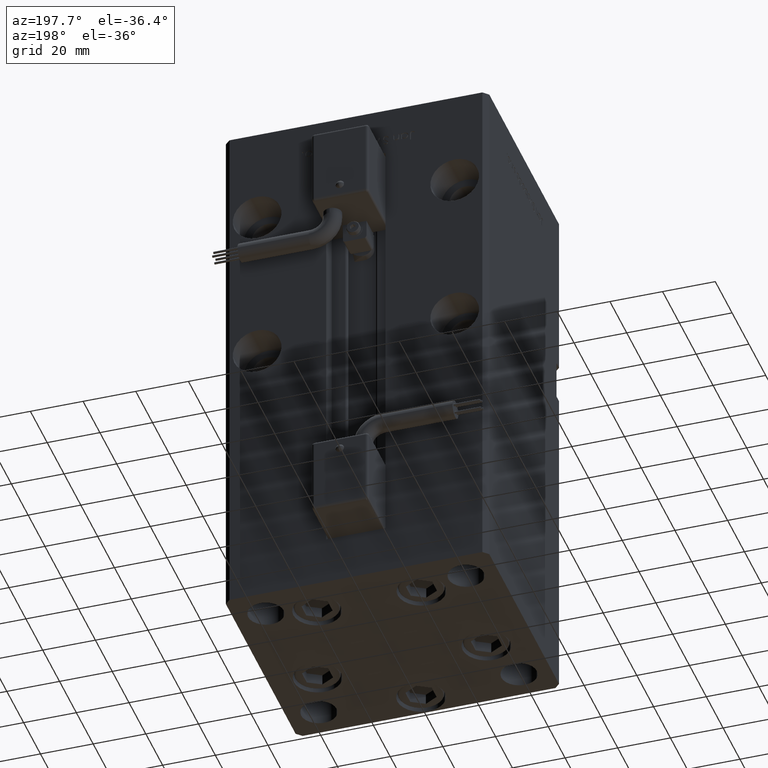
[diagram: clean part render]
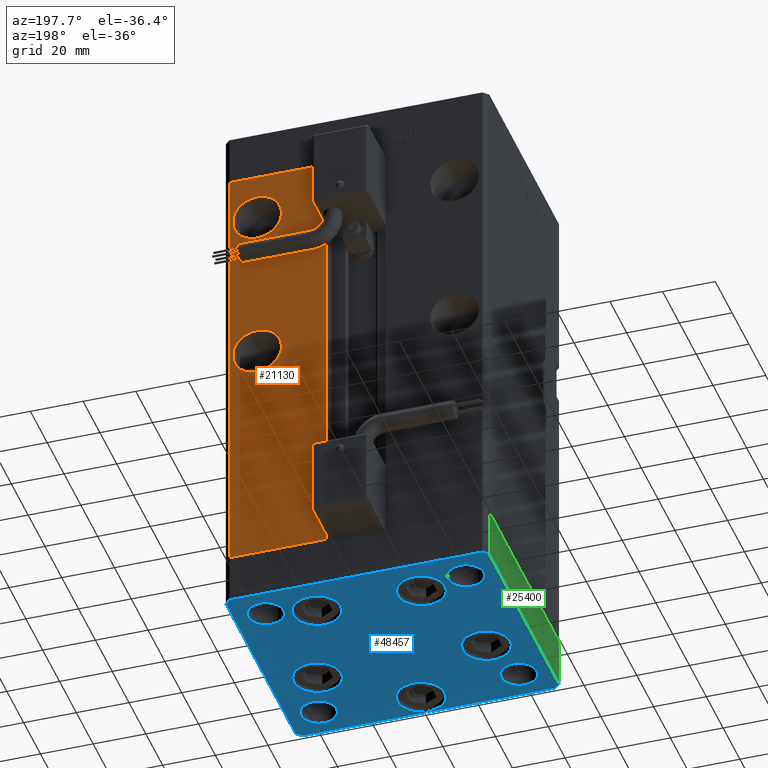
[diagram: same view with three faces highlighted in distinct colors, each labeled with its STEP entity id]
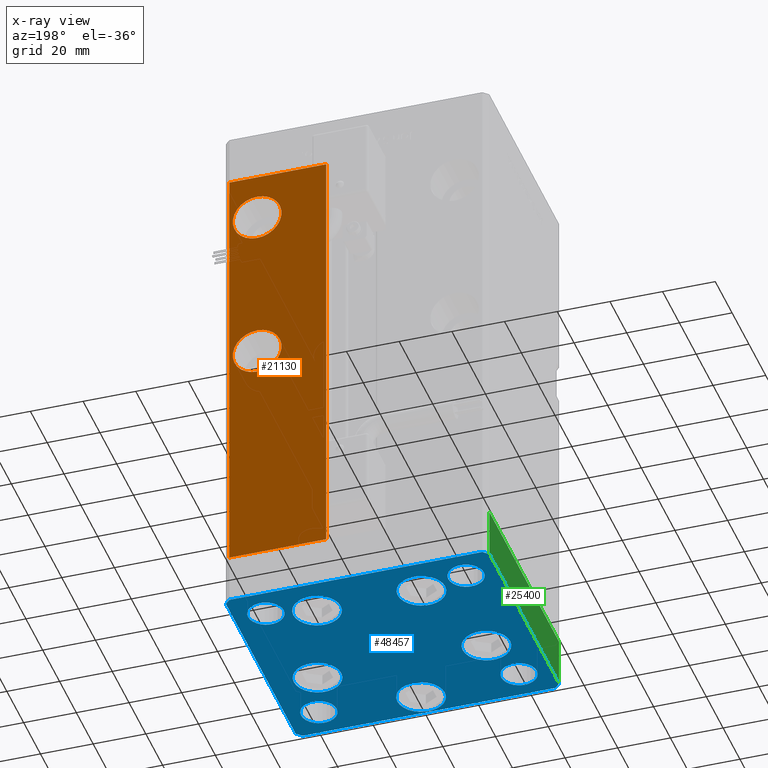
[diagram: x-ray of the same camera — body ghosted, the three highlighted faces saturated]
A machine part, auxiliary view with three faces highlighted in distinct colors.
The next image is the same camera in x-ray (body ghosted, the three faces saturated) — at least one of them is partly hidden behind the body in this view.
Their STEP definitions:

[orange] entity #21130 — the highlighted planar face has unit normal (0, -1, 0).
#147 = DIRECTION ( 'NONE',  ( 0.000000000000000000, 1.000000000000000000, 0.000000000000000000 ) ) ;
#302 = EDGE_CURVE ( 'NONE', #54902, #22147, #46914, .T. ) ;
#571 = AXIS2_PLACEMENT_3D ( 'NONE', #39480, #147, #16405 ) ;
#1321 = VERTEX_POINT ( 'NONE', #52003 ) ;
#1702 = AXIS2_PLACEMENT_3D ( 'NONE', #29967, #43376, #21145 ) ;
#3647 = VECTOR ( 'NONE', #29549, 1000.000000000000000 ) ;
#4143 = PLANE ( 'NONE',  #18569 ) ;
#6814 = LINE ( 'NONE', #15637, #19199 ) ;
#7726 = ORIENTED_EDGE ( 'NONE', *, *, #36786, .F. ) ;
#8147 = CARTESIAN_POINT ( 'NONE',  ( -11.24999999999999645, 43.50000000000000000, 168.5000000000000000 ) ) ;
#8708 = FACE_BOUND ( 'NONE', #22115, .T. ) ;
#9170 = VECTOR ( 'NONE', #17349, 1000.000000000000000 ) ;
#11019 = CARTESIAN_POINT ( 'NONE',  ( 48.00000000000000711, 43.50000000000000000, 168.5000000000000000 ) ) ;
#11691 = LINE ( 'NONE', #54182, #25466 ) ;
#11743 = DIRECTION ( 'NONE',  ( 0.000000000000000000, 1.000000000000000000, -0.000000000000000000 ) ) ;
#12045 = DIRECTION ( 'NONE',  ( 0.000000000000000000, 1.000000000000000000, 0.000000000000000000 ) ) ;
#12736 = CARTESIAN_POINT ( 'NONE',  ( -11.24999999999999645, 43.50000000000000000, 168.5000000000000000 ) ) ;
#15637 = CARTESIAN_POINT ( 'NONE',  ( 11.24999999999999645, 43.50000000000000000, 0.000000000000000000 ) ) ;
#15957 = DIRECTION ( 'NONE',  ( -1.000000000000000000, 0.000000000000000000, 0.000000000000000000 ) ) ;
#16092 = CARTESIAN_POINT ( 'NONE',  ( 37.50000000000000000, 43.50000000000000000, 141.2500000000000284 ) ) ;
#16405 = DIRECTION ( 'NONE',  ( 0.000000000000000000, 0.000000000000000000, 1.000000000000000000 ) ) ;
#16741 = VERTEX_POINT ( 'NONE', #18963 ) ;
#17349 = DIRECTION ( 'NONE',  ( -0.000000000000000000, -0.000000000000000000, -1.000000000000000000 ) ) ;
#18321 = AXIS2_PLACEMENT_3D ( 'NONE', #55665, #12045, #37973 ) ;
#18569 = AXIS2_PLACEMENT_3D ( 'NONE', #8147, #51460, #38058 ) ;
#18963 = CARTESIAN_POINT ( 'NONE',  ( 37.50000000000000000, 43.50000000000000000, 159.7500000000000284 ) ) ;
#19199 = VECTOR ( 'NONE', #37562, 1000.000000000000000 ) ;
#19320 = ORIENTED_EDGE ( 'NONE', *, *, #45882, .T. ) ;
#19910 = ORIENTED_EDGE ( 'NONE', *, *, #26909, .F. ) ;
#21130 = ADVANCED_FACE ( 'NONE', ( #47185, #8708, #55459 ), #4143, .F. ) ;
#21145 = DIRECTION ( 'NONE',  ( 0.000000000000000000, 0.000000000000000000, -1.000000000000000000 ) ) ;
#21854 = LINE ( 'NONE', #12736, #3647 ) ;
#22115 = EDGE_LOOP ( 'NONE', ( #46879, #19910 ) ) ;
#22147 = VERTEX_POINT ( 'NONE', #40671 ) ;
#25466 = VECTOR ( 'NONE', #15957, 1000.000000000000000 ) ;
#26909 = EDGE_CURVE ( 'NONE', #54933, #16741, #54295, .T. ) ;
#27021 = CARTESIAN_POINT ( 'NONE',  ( 48.00000000000000711, 43.50000000000000000, 168.5000000000000000 ) ) ;
#29549 = DIRECTION ( 'NONE',  ( 1.000000000000000000, 0.000000000000000000, 0.000000000000000000 ) ) ;
#29967 = CARTESIAN_POINT ( 'NONE',  ( 37.50000000000000000, 43.50000000000000000, 90.50000000000002842 ) ) ;
#30092 = VERTEX_POINT ( 'NONE', #49478 ) ;
#30135 = CIRCLE ( 'NONE', #18321, 9.250000000000008882 ) ;
#31537 = EDGE_LOOP ( 'NONE', ( #55021, #7726 ) ) ;
#31547 = VERTEX_POINT ( 'NONE', #11019 ) ;
#33492 = EDGE_LOOP ( 'NONE', ( #39980, #19320, #50129, #51814 ) ) ;
#35102 = CARTESIAN_POINT ( 'NONE',  ( 37.50000000000000000, 43.50000000000000000, 99.75000000000002842 ) ) ;
#36786 = EDGE_CURVE ( 'NONE', #22147, #54902, #51800, .T. ) ;
#37562 = DIRECTION ( 'NONE',  ( -0.000000000000000000, -0.000000000000000000, 1.000000000000000000 ) ) ;
#37973 = DIRECTION ( 'NONE',  ( 0.000000000000000000, 0.000000000000000000, 1.000000000000000000 ) ) ;
#38058 = DIRECTION ( 'NONE',  ( 0.000000000000000000, -0.000000000000000000, -1.000000000000000000 ) ) ;
#39382 = EDGE_CURVE ( 'NONE', #1321, #54720, #11691, .T. ) ;
#39480 = CARTESIAN_POINT ( 'NONE',  ( 37.50000000000000000, 43.50000000000000000, 150.5000000000000284 ) ) ;
#39980 = ORIENTED_EDGE ( 'NONE', *, *, #39382, .T. ) ;
#40671 = CARTESIAN_POINT ( 'NONE',  ( 37.50000000000000000, 43.50000000000000000, 81.25000000000001421 ) ) ;
#41500 = EDGE_CURVE ( 'NONE', #31547, #1321, #52984, .T. ) ;
#42465 = EDGE_CURVE ( 'NONE', #16741, #54933, #30135, .T. ) ;
#43376 = DIRECTION ( 'NONE',  ( 0.000000000000000000, 1.000000000000000000, -0.000000000000000000 ) ) ;
#45882 = EDGE_CURVE ( 'NONE', #54720, #30092, #6814, .T. ) ;
#46511 = DIRECTION ( 'NONE',  ( 0.000000000000000000, 0.000000000000000000, -1.000000000000000000 ) ) ;
#46879 = ORIENTED_EDGE ( 'NONE', *, *, #42465, .F. ) ;
#46914 = CIRCLE ( 'NONE', #52372, 9.250000000000008882 ) ;
#47185 = FACE_BOUND ( 'NONE', #31537, .T. ) ;
#48376 = CARTESIAN_POINT ( 'NONE',  ( 11.24999999999999645, 43.50000000000000000, 0.000000000000000000 ) ) ;
#49478 = CARTESIAN_POINT ( 'NONE',  ( 11.24999999999998934, 43.50000000000000000, 168.5000000000000000 ) ) ;
#50129 = ORIENTED_EDGE ( 'NONE', *, *, #54557, .T. ) ;
#50237 = CARTESIAN_POINT ( 'NONE',  ( 37.50000000000000000, 43.50000000000000000, 90.50000000000002842 ) ) ;
#51460 = DIRECTION ( 'NONE',  ( 0.000000000000000000, -1.000000000000000000, 0.000000000000000000 ) ) ;
#51800 = CIRCLE ( 'NONE', #1702, 9.250000000000008882 ) ;
#51814 = ORIENTED_EDGE ( 'NONE', *, *, #41500, .T. ) ;
#52003 = CARTESIAN_POINT ( 'NONE',  ( 48.00000000000000711, 43.50000000000000000, 0.000000000000000000 ) ) ;
#52372 = AXIS2_PLACEMENT_3D ( 'NONE', #50237, #11743, #46511 ) ;
#52984 = LINE ( 'NONE', #27021, #9170 ) ;
#54182 = CARTESIAN_POINT ( 'NONE',  ( -11.24999999999999645, 43.50000000000000000, 0.000000000000000000 ) ) ;
#54295 = CIRCLE ( 'NONE', #571, 9.250000000000008882 ) ;
#54557 = EDGE_CURVE ( 'NONE', #30092, #31547, #21854, .T. ) ;
#54720 = VERTEX_POINT ( 'NONE', #48376 ) ;
#54902 = VERTEX_POINT ( 'NONE', #35102 ) ;
#54933 = VERTEX_POINT ( 'NONE', #16092 ) ;
#55021 = ORIENTED_EDGE ( 'NONE', *, *, #302, .F. ) ;
#55459 = FACE_OUTER_BOUND ( 'NONE', #33492, .T. ) ;
#55665 = CARTESIAN_POINT ( 'NONE',  ( 37.50000000000000000, 43.50000000000000000, 150.5000000000000284 ) ) ;

[blue] entity #48457 — the highlighted planar face has unit normal (0, 0, -1).
#275 = DIRECTION ( 'NONE',  ( 0.000000000000000000, -0.000000000000000000, -1.000000000000000000 ) ) ;
#468 = VERTEX_POINT ( 'NONE', #31921 ) ;
#686 = AXIS2_PLACEMENT_3D ( 'NONE', #45525, #54642, #33227 ) ;
#1266 = EDGE_CURVE ( 'NONE', #28859, #34929, #19650, .T. ) ;
#1428 = VECTOR ( 'NONE', #4638, 1000.000000000000000 ) ;
#1566 = CIRCLE ( 'NONE', #686, 6.749999999999999112 ) ;
#1615 = CIRCLE ( 'NONE', #8921, 9.000000000000001776 ) ;
#1670 = EDGE_CURVE ( 'NONE', #55428, #19113, #56030, .T. ) ;
#1683 = CIRCLE ( 'NONE', #8995, 8.999999999999998224 ) ;
#2089 = CARTESIAN_POINT ( 'NONE',  ( -32.05550741379015278, -11.33333333333333925, 0.000000000000000000 ) ) ;
#2255 = CARTESIAN_POINT ( 'NONE',  ( -47.99999999999999289, -43.50000000000001421, 0.000000000000000000 ) ) ;
#2780 = EDGE_CURVE ( 'NONE', #55159, #38028, #28755, .T. ) ;
#2881 = DIRECTION ( 'NONE',  ( 0.000000000000000000, -0.000000000000000000, -1.000000000000000000 ) ) ;
#3442 = DIRECTION ( 'NONE',  ( 1.000000000000000000, 0.000000000000000000, 0.000000000000000000 ) ) ;
#3708 = CARTESIAN_POINT ( 'NONE',  ( -44.75000000000000000, 31.50000000000000000, 0.000000000000000000 ) ) ;
#4638 = DIRECTION ( 'NONE',  ( -0.7071067811865463515, -0.7071067811865487940, 0.000000000000000000 ) ) ;
#4688 = VERTEX_POINT ( 'NONE', #41673 ) ;
#4700 = ORIENTED_EDGE ( 'NONE', *, *, #5873, .T. ) ;
#4755 = DIRECTION ( 'NONE',  ( 1.000000000000000000, 0.000000000000000000, 0.000000000000000000 ) ) ;
#5413 = AXIS2_PLACEMENT_3D ( 'NONE', #15676, #19111, #10563 ) ;
#5479 = EDGE_CURVE ( 'NONE', #53627, #40820, #15726, .T. ) ;
#5595 = EDGE_CURVE ( 'NONE', #51039, #21191, #20709, .T. ) ;
#5868 = AXIS2_PLACEMENT_3D ( 'NONE', #35334, #275, #47613 ) ;
#5873 = EDGE_CURVE ( 'NONE', #54904, #9324, #11117, .T. ) ;
#5975 = DIRECTION ( 'NONE',  ( 0.7071067811865463515, 0.7071067811865487940, 0.000000000000000000 ) ) ;
#6323 = CARTESIAN_POINT ( 'NONE',  ( 38.00000000000000000, 31.49999999999999289, 0.000000000000000000 ) ) ;
#6466 = DIRECTION ( 'NONE',  ( 1.000000000000000000, 0.000000000000000000, 0.000000000000000000 ) ) ;
#6601 = CARTESIAN_POINT ( 'NONE',  ( 41.05550741379015278, -11.33333333333332860, 0.000000000000000000 ) ) ;
#6743 = CARTESIAN_POINT ( 'NONE',  ( 0.000000000000000000, 0.000000000000000000, 0.000000000000000000 ) ) ;
#6836 = EDGE_LOOP ( 'NONE', ( #4700, #17409, #23023, #12724, #27180, #40914, #21263, #14228 ) ) ;
#6856 = CARTESIAN_POINT ( 'NONE',  ( -47.99999999999999289, -43.50000000000001421, 0.000000000000000000 ) ) ;
#6906 = DIRECTION ( 'NONE',  ( 1.000000000000000000, 0.000000000000000000, 0.000000000000000000 ) ) ;
#6921 = EDGE_CURVE ( 'NONE', #468, #23535, #10741, .T. ) ;
#7135 = DIRECTION ( 'NONE',  ( 1.000000000000000000, 0.000000000000000000, 0.000000000000000000 ) ) ;
#7156 = EDGE_CURVE ( 'NONE', #38028, #53627, #26639, .T. ) ;
#7220 = EDGE_CURVE ( 'NONE', #4688, #17467, #1615, .T. ) ;
#7403 = CARTESIAN_POINT ( 'NONE',  ( -50.00000000000000000, -41.50000000000000000, 0.000000000000000000 ) ) ;
#7469 = CARTESIAN_POINT ( 'NONE',  ( 49.99999999999992184, 41.49999999999998579, 0.000000000000000000 ) ) ;
#7832 = ORIENTED_EDGE ( 'NONE', *, *, #51271, .T. ) ;
#8137 = AXIS2_PLACEMENT_3D ( 'NONE', #6323, #36237, #32811 ) ;
#8581 = ORIENTED_EDGE ( 'NONE', *, *, #22629, .T. ) ;
#8755 = VECTOR ( 'NONE', #5975, 1000.000000000000000 ) ;
#8772 = CARTESIAN_POINT ( 'NONE',  ( 32.05550741379015278, -11.33333333333333037, 0.000000000000000000 ) ) ;
#8921 = AXIS2_PLACEMENT_3D ( 'NONE', #2089, #10101, #36288 ) ;
#8995 = AXIS2_PLACEMENT_3D ( 'NONE', #16820, #2881, #3442 ) ;
#9324 = VERTEX_POINT ( 'NONE', #2255 ) ;
#9575 = EDGE_CURVE ( 'NONE', #10068, #16665, #17620, .T. ) ;
#10068 = VERTEX_POINT ( 'NONE', #3708 ) ;
#10083 = CARTESIAN_POINT ( 'NONE',  ( -28.82068048781373548, 27.62499999999999645, 0.000000000000000000 ) ) ;
#10101 = DIRECTION ( 'NONE',  ( 0.000000000000000000, -0.000000000000000000, -1.000000000000000000 ) ) ;
#10563 = DIRECTION ( 'NONE',  ( 1.000000000000000000, 0.000000000000000000, 0.000000000000000000 ) ) ;
#10741 = CIRCLE ( 'NONE', #35316, 6.749999999999999112 ) ;
#10991 = AXIS2_PLACEMENT_3D ( 'NONE', #37807, #28977, #12439 ) ;
#11117 = LINE ( 'NONE', #7403, #47117 ) ;
#11386 = CARTESIAN_POINT ( 'NONE',  ( 47.99999999999999289, -43.50000000000001421, 0.000000000000000000 ) ) ;
#11523 = AXIS2_PLACEMENT_3D ( 'NONE', #8772, #26149, #43549 ) ;
#11576 = DIRECTION ( 'NONE',  ( -0.000000000000000000, 0.000000000000000000, 1.000000000000000000 ) ) ;
#11784 = EDGE_LOOP ( 'NONE', ( #37241, #52752 ) ) ;
#11856 = FACE_OUTER_BOUND ( 'NONE', #6836, .T. ) ;
#12004 = EDGE_LOOP ( 'NONE', ( #12497, #55186 ) ) ;
#12439 = DIRECTION ( 'NONE',  ( 1.000000000000000000, 0.000000000000000000, 0.000000000000000000 ) ) ;
#12497 = ORIENTED_EDGE ( 'NONE', *, *, #1670, .T. ) ;
#12665 = VERTEX_POINT ( 'NONE', #20921 ) ;
#12724 = ORIENTED_EDGE ( 'NONE', *, *, #7156, .T. ) ;
#13187 = CARTESIAN_POINT ( 'NONE',  ( 10.82068048781373193, 27.62500000000000000, 0.000000000000000000 ) ) ;
#13477 = AXIS2_PLACEMENT_3D ( 'NONE', #32200, #27935, #45627 ) ;
#13578 = ORIENTED_EDGE ( 'NONE', *, *, #5595, .T. ) ;
#14191 = DIRECTION ( 'NONE',  ( 1.000000000000000000, 0.000000000000000000, 0.000000000000000000 ) ) ;
#14211 = CARTESIAN_POINT ( 'NONE',  ( 47.99999999999999289, -43.50000000000001421, 0.000000000000000000 ) ) ;
#14228 = ORIENTED_EDGE ( 'NONE', *, *, #39533, .T. ) ;
#14339 = EDGE_CURVE ( 'NONE', #19113, #55428, #34945, .T. ) ;
#14842 = EDGE_LOOP ( 'NONE', ( #22980, #54593 ) ) ;
#15232 = CARTESIAN_POINT ( 'NONE',  ( 47.99999999999990763, 43.50000000000000000, 0.000000000000000000 ) ) ;
#15316 = CARTESIAN_POINT ( 'NONE',  ( -10.82068048781373903, 27.62499999999999645, 0.000000000000000000 ) ) ;
#15385 = CARTESIAN_POINT ( 'NONE',  ( -23.05550741379014923, -11.33333333333333748, 0.000000000000000000 ) ) ;
#15676 = CARTESIAN_POINT ( 'NONE',  ( 38.00000000000000000, -31.49999999999999289, 0.000000000000000000 ) ) ;
#15726 = LINE ( 'NONE', #7469, #38899 ) ;
#15869 = AXIS2_PLACEMENT_3D ( 'NONE', #44194, #35056, #22807 ) ;
#16240 = DIRECTION ( 'NONE',  ( 8.360113137237628665E-17, -1.000000000000000000, 0.000000000000000000 ) ) ;
#16274 = EDGE_CURVE ( 'NONE', #40820, #46988, #22053, .T. ) ;
#16297 = CIRCLE ( 'NONE', #8137, 6.749999999999999112 ) ;
#16665 = VERTEX_POINT ( 'NONE', #37320 ) ;
#16820 = CARTESIAN_POINT ( 'NONE',  ( 19.82068048781373193, 27.62500000000000000, 0.000000000000000000 ) ) ;
#17409 = ORIENTED_EDGE ( 'NONE', *, *, #38389, .T. ) ;
#17467 = VERTEX_POINT ( 'NONE', #15385 ) ;
#17573 = CARTESIAN_POINT ( 'NONE',  ( -38.00000000000000000, 31.50000000000000000, 0.000000000000000000 ) ) ;
#17620 = CIRCLE ( 'NONE', #47671, 6.749999999999999112 ) ;
#17822 = ORIENTED_EDGE ( 'NONE', *, *, #46927, .F. ) ;
#18502 = VERTEX_POINT ( 'NONE', #20234 ) ;
#18898 = DIRECTION ( 'NONE',  ( 1.000000000000000000, 0.000000000000000000, 0.000000000000000000 ) ) ;
#18964 = DIRECTION ( 'NONE',  ( 0.000000000000000000, -0.000000000000000000, -1.000000000000000000 ) ) ;
#19111 = DIRECTION ( 'NONE',  ( 0.000000000000000000, -0.000000000000000000, -1.000000000000000000 ) ) ;
#19113 = VERTEX_POINT ( 'NONE', #22075 ) ;
#19249 = CARTESIAN_POINT ( 'NONE',  ( -19.82068048781373903, 27.62499999999999645, 0.000000000000000000 ) ) ;
#19650 = CIRCLE ( 'NONE', #32367, 9.000000000000000000 ) ;
#19808 = DIRECTION ( 'NONE',  ( 1.000000000000000000, 0.000000000000000000, 0.000000000000000000 ) ) ;
#19848 = FACE_BOUND ( 'NONE', #12004, .T. ) ;
#20234 = CARTESIAN_POINT ( 'NONE',  ( 28.82068048781372838, 27.62500000000000000, 0.000000000000000000 ) ) ;
#20709 = CIRCLE ( 'NONE', #54407, 9.000000000000000000 ) ;
#20921 = CARTESIAN_POINT ( 'NONE',  ( 23.05550741379014923, -11.33333333333333037, 0.000000000000000000 ) ) ;
#21039 = ORIENTED_EDGE ( 'NONE', *, *, #21808, .T. ) ;
#21191 = VERTEX_POINT ( 'NONE', #52888 ) ;
#21263 = ORIENTED_EDGE ( 'NONE', *, *, #26013, .T. ) ;
#21531 = CIRCLE ( 'NONE', #52504, 9.000000000000000000 ) ;
#21808 = EDGE_CURVE ( 'NONE', #17467, #4688, #44128, .T. ) ;
#21815 = ORIENTED_EDGE ( 'NONE', *, *, #38411, .T. ) ;
#22053 = LINE ( 'NONE', #22905, #44168 ) ;
#22059 = EDGE_LOOP ( 'NONE', ( #8581, #7832 ) ) ;
#22075 = CARTESIAN_POINT ( 'NONE',  ( -44.74999999999999289, -31.50000000000000000, 0.000000000000000000 ) ) ;
#22481 = CARTESIAN_POINT ( 'NONE',  ( 38.00000000000000000, 31.49999999999999289, 0.000000000000000000 ) ) ;
#22629 = EDGE_CURVE ( 'NONE', #45257, #18502, #45011, .T. ) ;
#22807 = DIRECTION ( 'NONE',  ( 1.000000000000000000, 0.000000000000000000, 0.000000000000000000 ) ) ;
#22905 = CARTESIAN_POINT ( 'NONE',  ( 47.99999999999990763, 43.50000000000000000, 0.000000000000000000 ) ) ;
#22980 = ORIENTED_EDGE ( 'NONE', *, *, #34322, .T. ) ;
#23023 = ORIENTED_EDGE ( 'NONE', *, *, #2780, .T. ) ;
#23392 = LINE ( 'NONE', #6856, #33589 ) ;
#23535 = VERTEX_POINT ( 'NONE', #31432 ) ;
#23949 = CARTESIAN_POINT ( 'NONE',  ( 38.00000000000000000, -31.49999999999999289, 0.000000000000000000 ) ) ;
#24124 = FACE_BOUND ( 'NONE', #34552, .T. ) ;
#26013 = EDGE_CURVE ( 'NONE', #46988, #28691, #35114, .T. ) ;
#26149 = DIRECTION ( 'NONE',  ( 0.000000000000000000, -0.000000000000000000, -1.000000000000000000 ) ) ;
#26209 = CIRCLE ( 'NONE', #13477, 9.000000000000000000 ) ;
#26408 = CARTESIAN_POINT ( 'NONE',  ( -37.99999999999999289, -31.50000000000000000, 0.000000000000000000 ) ) ;
#26639 = LINE ( 'NONE', #31193, #55348 ) ;
#27180 = ORIENTED_EDGE ( 'NONE', *, *, #5479, .T. ) ;
#27473 = CARTESIAN_POINT ( 'NONE',  ( 4.163799117101000559E-15, -34.00000000000000000, 0.000000000000000000 ) ) ;
#27935 = DIRECTION ( 'NONE',  ( 0.000000000000000000, -0.000000000000000000, -1.000000000000000000 ) ) ;
#28556 = CARTESIAN_POINT ( 'NONE',  ( 4.163799117101000559E-15, -34.00000000000000000, 0.000000000000000000 ) ) ;
#28612 = VERTEX_POINT ( 'NONE', #54719 ) ;
#28691 = VERTEX_POINT ( 'NONE', #32086 ) ;
#28755 = LINE ( 'NONE', #11386, #8755 ) ;
#28859 = VERTEX_POINT ( 'NONE', #15316 ) ;
#28977 = DIRECTION ( 'NONE',  ( 0.000000000000000000, -0.000000000000000000, -1.000000000000000000 ) ) ;
#31000 = EDGE_CURVE ( 'NONE', #21191, #51039, #21531, .T. ) ;
#31193 = CARTESIAN_POINT ( 'NONE',  ( 50.00000000000000000, -41.49999999999999289, 0.000000000000000000 ) ) ;
#31432 = CARTESIAN_POINT ( 'NONE',  ( 44.75000000000000000, 31.49999999999999289, 0.000000000000000000 ) ) ;
#31505 = EDGE_CURVE ( 'NONE', #12665, #45418, #54332, .T. ) ;
#31921 = CARTESIAN_POINT ( 'NONE',  ( 31.25000000000000000, 31.49999999999999289, 0.000000000000000000 ) ) ;
#32086 = CARTESIAN_POINT ( 'NONE',  ( -50.00000000000000711, 41.49999999999995026, 0.000000000000000000 ) ) ;
#32183 = EDGE_LOOP ( 'NONE', ( #37530, #21039 ) ) ;
#32200 = CARTESIAN_POINT ( 'NONE',  ( -19.82068048781373903, 27.62499999999999645, 0.000000000000000000 ) ) ;
#32367 = AXIS2_PLACEMENT_3D ( 'NONE', #19249, #18964, #19808 ) ;
#32811 = DIRECTION ( 'NONE',  ( 1.000000000000000000, 0.000000000000000000, 0.000000000000000000 ) ) ;
#33216 = FACE_BOUND ( 'NONE', #32183, .T. ) ;
#33227 = DIRECTION ( 'NONE',  ( 1.000000000000000000, 0.000000000000000000, 0.000000000000000000 ) ) ;
#33471 = AXIS2_PLACEMENT_3D ( 'NONE', #23949, #45901, #54455 ) ;
#33589 = VECTOR ( 'NONE', #7135, 1000.000000000000000 ) ;
#34314 = ORIENTED_EDGE ( 'NONE', *, *, #31000, .T. ) ;
#34322 = EDGE_CURVE ( 'NONE', #34929, #28859, #26209, .T. ) ;
#34340 = EDGE_CURVE ( 'NONE', #44339, #28612, #44454, .T. ) ;
#34552 = EDGE_LOOP ( 'NONE', ( #17822, #35258 ) ) ;
#34929 = VERTEX_POINT ( 'NONE', #10083 ) ;
#34945 = CIRCLE ( 'NONE', #49521, 6.749999999999999112 ) ;
#35056 = DIRECTION ( 'NONE',  ( 0.000000000000000000, -0.000000000000000000, -1.000000000000000000 ) ) ;
#35114 = LINE ( 'NONE', #52516, #1428 ) ;
#35258 = ORIENTED_EDGE ( 'NONE', *, *, #9575, .F. ) ;
#35316 = AXIS2_PLACEMENT_3D ( 'NONE', #22481, #44711, #14191 ) ;
#35334 = CARTESIAN_POINT ( 'NONE',  ( -32.05550741379015278, -11.33333333333333925, 0.000000000000000000 ) ) ;
#35534 = CARTESIAN_POINT ( 'NONE',  ( -31.24999999999999289, -31.50000000000000000, 0.000000000000000000 ) ) ;
#36237 = DIRECTION ( 'NONE',  ( -0.000000000000000000, 0.000000000000000000, 1.000000000000000000 ) ) ;
#36288 = DIRECTION ( 'NONE',  ( 1.000000000000000000, 0.000000000000000000, 0.000000000000000000 ) ) ;
#36352 = VECTOR ( 'NONE', #16240, 1000.000000000000000 ) ;
#37241 = ORIENTED_EDGE ( 'NONE', *, *, #31505, .T. ) ;
#37320 = CARTESIAN_POINT ( 'NONE',  ( -31.25000000000000000, 31.50000000000000000, 0.000000000000000000 ) ) ;
#37530 = ORIENTED_EDGE ( 'NONE', *, *, #7220, .T. ) ;
#37776 = FACE_BOUND ( 'NONE', #52416, .T. ) ;
#37807 = CARTESIAN_POINT ( 'NONE',  ( 32.05550741379015278, -11.33333333333333037, 0.000000000000000000 ) ) ;
#38028 = VERTEX_POINT ( 'NONE', #44294 ) ;
#38323 = ORIENTED_EDGE ( 'NONE', *, *, #6921, .F. ) ;
#38353 = ORIENTED_EDGE ( 'NONE', *, *, #34340, .T. ) ;
#38389 = EDGE_CURVE ( 'NONE', #9324, #55159, #23392, .T. ) ;
#38411 = EDGE_CURVE ( 'NONE', #28612, #44339, #54571, .T. ) ;
#38732 = AXIS2_PLACEMENT_3D ( 'NONE', #53684, #40845, #18898 ) ;
#38899 = VECTOR ( 'NONE', #45391, 1000.000000000000114 ) ;
#39533 = EDGE_CURVE ( 'NONE', #28691, #54904, #42753, .T. ) ;
#39728 = EDGE_LOOP ( 'NONE', ( #21815, #38353 ) ) ;
#40283 = DIRECTION ( 'NONE',  ( -1.000000000000000000, -3.614007241618350743E-16, 0.000000000000000000 ) ) ;
#40820 = VERTEX_POINT ( 'NONE', #15232 ) ;
#40845 = DIRECTION ( 'NONE',  ( 0.000000000000000000, -0.000000000000000000, -1.000000000000000000 ) ) ;
#40914 = ORIENTED_EDGE ( 'NONE', *, *, #16274, .T. ) ;
#41341 = EDGE_LOOP ( 'NONE', ( #48102, #38323 ) ) ;
#41673 = CARTESIAN_POINT ( 'NONE',  ( -41.05550741379015278, -11.33333333333333925, 0.000000000000000000 ) ) ;
#41705 = EDGE_CURVE ( 'NONE', #45418, #12665, #54697, .T. ) ;
#41891 = DIRECTION ( 'NONE',  ( 0.7071067811865474617, -0.7071067811865474617, 0.000000000000000000 ) ) ;
#42753 = LINE ( 'NONE', #56138, #36352 ) ;
#43549 = DIRECTION ( 'NONE',  ( 1.000000000000000000, 0.000000000000000000, 0.000000000000000000 ) ) ;
#43809 = DIRECTION ( 'NONE',  ( 0.000000000000000000, -0.000000000000000000, -1.000000000000000000 ) ) ;
#44128 = CIRCLE ( 'NONE', #5868, 9.000000000000001776 ) ;
#44168 = VECTOR ( 'NONE', #40283, 1000.000000000000000 ) ;
#44194 = CARTESIAN_POINT ( 'NONE',  ( 19.82068048781373193, 27.62500000000000000, 0.000000000000000000 ) ) ;
#44294 = CARTESIAN_POINT ( 'NONE',  ( 50.00000000000000000, -41.49999999999999289, 0.000000000000000000 ) ) ;
#44339 = VERTEX_POINT ( 'NONE', #51458 ) ;
#44454 = CIRCLE ( 'NONE', #33471, 6.749999999999999112 ) ;
#44711 = DIRECTION ( 'NONE',  ( -0.000000000000000000, 0.000000000000000000, 1.000000000000000000 ) ) ;
#45011 = CIRCLE ( 'NONE', #15869, 8.999999999999998224 ) ;
#45257 = VERTEX_POINT ( 'NONE', #13187 ) ;
#45391 = DIRECTION ( 'NONE',  ( -0.7071067811865474617, 0.7071067811865474617, 0.000000000000000000 ) ) ;
#45418 = VERTEX_POINT ( 'NONE', #6601 ) ;
#45514 = FACE_BOUND ( 'NONE', #22059, .T. ) ;
#45525 = CARTESIAN_POINT ( 'NONE',  ( -38.00000000000000000, 31.50000000000000000, 0.000000000000000000 ) ) ;
#45627 = DIRECTION ( 'NONE',  ( 1.000000000000000000, 0.000000000000000000, 0.000000000000000000 ) ) ;
#45794 = FACE_BOUND ( 'NONE', #14842, .T. ) ;
#45901 = DIRECTION ( 'NONE',  ( 0.000000000000000000, -0.000000000000000000, -1.000000000000000000 ) ) ;
#45954 = DIRECTION ( 'NONE',  ( 0.000000000000000000, -0.000000000000000000, -1.000000000000000000 ) ) ;
#46623 = PLANE ( 'NONE',  #53547 ) ;
#46927 = EDGE_CURVE ( 'NONE', #16665, #10068, #1566, .T. ) ;
#46988 = VERTEX_POINT ( 'NONE', #55197 ) ;
#47117 = VECTOR ( 'NONE', #41891, 1000.000000000000114 ) ;
#47613 = DIRECTION ( 'NONE',  ( 1.000000000000000000, 0.000000000000000000, 0.000000000000000000 ) ) ;
#47671 = AXIS2_PLACEMENT_3D ( 'NONE', #17573, #48090, #56350 ) ;
#48090 = DIRECTION ( 'NONE',  ( -0.000000000000000000, 0.000000000000000000, 1.000000000000000000 ) ) ;
#48102 = ORIENTED_EDGE ( 'NONE', *, *, #52008, .F. ) ;
#48457 = ADVANCED_FACE ( 'NONE', ( #45794, #45514, #54905, #37776, #33216, #50900, #50618, #24124, #11856, #19848 ), #46623, .T. ) ;
#48593 = DIRECTION ( 'NONE',  ( -1.003213576468515193E-15, 1.000000000000000000, 0.000000000000000000 ) ) ;
#49419 = DIRECTION ( 'NONE',  ( 0.000000000000000000, -0.000000000000000000, -1.000000000000000000 ) ) ;
#49521 = AXIS2_PLACEMENT_3D ( 'NONE', #26408, #43809, #4755 ) ;
#50618 = FACE_BOUND ( 'NONE', #39728, .T. ) ;
#50900 = FACE_BOUND ( 'NONE', #41341, .T. ) ;
#51039 = VERTEX_POINT ( 'NONE', #52518 ) ;
#51271 = EDGE_CURVE ( 'NONE', #18502, #45257, #1683, .T. ) ;
#51458 = CARTESIAN_POINT ( 'NONE',  ( 31.25000000000000000, -31.49999999999999289, 0.000000000000000000 ) ) ;
#52008 = EDGE_CURVE ( 'NONE', #23535, #468, #16297, .T. ) ;
#52416 = EDGE_LOOP ( 'NONE', ( #34314, #13578 ) ) ;
#52502 = CARTESIAN_POINT ( 'NONE',  ( -50.00000000000000000, -41.50000000000000000, 0.000000000000000000 ) ) ;
#52504 = AXIS2_PLACEMENT_3D ( 'NONE', #27473, #49419, #54260 ) ;
#52516 = CARTESIAN_POINT ( 'NONE',  ( -48.00000000000000711, 43.49999999999996447, 0.000000000000000000 ) ) ;
#52518 = CARTESIAN_POINT ( 'NONE',  ( 9.000000000000003553, -34.00000000000000000, 0.000000000000000000 ) ) ;
#52752 = ORIENTED_EDGE ( 'NONE', *, *, #41705, .T. ) ;
#52888 = CARTESIAN_POINT ( 'NONE',  ( -8.999999999999996447, -34.00000000000000000, 0.000000000000000000 ) ) ;
#53547 = AXIS2_PLACEMENT_3D ( 'NONE', #6743, #11576, #6466 ) ;
#53627 = VERTEX_POINT ( 'NONE', #54079 ) ;
#53684 = CARTESIAN_POINT ( 'NONE',  ( -37.99999999999999289, -31.50000000000000000, 0.000000000000000000 ) ) ;
#54079 = CARTESIAN_POINT ( 'NONE',  ( 49.99999999999992184, 41.49999999999998579, 0.000000000000000000 ) ) ;
#54260 = DIRECTION ( 'NONE',  ( 1.000000000000000000, 0.000000000000000000, 0.000000000000000000 ) ) ;
#54332 = CIRCLE ( 'NONE', #11523, 9.000000000000001776 ) ;
#54407 = AXIS2_PLACEMENT_3D ( 'NONE', #28556, #45954, #6906 ) ;
#54455 = DIRECTION ( 'NONE',  ( 1.000000000000000000, 0.000000000000000000, 0.000000000000000000 ) ) ;
#54571 = CIRCLE ( 'NONE', #5413, 6.749999999999999112 ) ;
#54593 = ORIENTED_EDGE ( 'NONE', *, *, #1266, .T. ) ;
#54642 = DIRECTION ( 'NONE',  ( -0.000000000000000000, 0.000000000000000000, 1.000000000000000000 ) ) ;
#54697 = CIRCLE ( 'NONE', #10991, 9.000000000000001776 ) ;
#54719 = CARTESIAN_POINT ( 'NONE',  ( 44.75000000000000000, -31.49999999999999289, 0.000000000000000000 ) ) ;
#54904 = VERTEX_POINT ( 'NONE', #52502 ) ;
#54905 = FACE_BOUND ( 'NONE', #11784, .T. ) ;
#55159 = VERTEX_POINT ( 'NONE', #14211 ) ;
#55186 = ORIENTED_EDGE ( 'NONE', *, *, #14339, .T. ) ;
#55197 = CARTESIAN_POINT ( 'NONE',  ( -48.00000000000000711, 43.49999999999996447, 0.000000000000000000 ) ) ;
#55348 = VECTOR ( 'NONE', #48593, 1000.000000000000000 ) ;
#55428 = VERTEX_POINT ( 'NONE', #35534 ) ;
#56030 = CIRCLE ( 'NONE', #38732, 6.749999999999999112 ) ;
#56138 = CARTESIAN_POINT ( 'NONE',  ( -50.00000000000000711, 41.49999999999995026, 0.000000000000000000 ) ) ;
#56350 = DIRECTION ( 'NONE',  ( 1.000000000000000000, 0.000000000000000000, 0.000000000000000000 ) ) ;

[green] entity #25400 — the highlighted planar face has unit normal (-1, -0, 0).
#325 = CARTESIAN_POINT ( 'NONE',  ( 50.00000000000000000, -41.49999999999999289, -19.00000000000000000 ) ) ;
#2967 = LINE ( 'NONE', #33728, #29527 ) ;
#4581 = CARTESIAN_POINT ( 'NONE',  ( 50.00000000000000000, -41.49999999999999289, -19.00000000000000000 ) ) ;
#5176 = DIRECTION ( 'NONE',  ( 1.000000000000000000, 1.003213576468515193E-15, -0.000000000000000000 ) ) ;
#7156 = EDGE_CURVE ( 'NONE', #38028, #53627, #26639, .T. ) ;
#8896 = DIRECTION ( 'NONE',  ( -1.003213576468515193E-15, 1.000000000000000000, 0.000000000000000000 ) ) ;
#10590 = VECTOR ( 'NONE', #27544, 1000.000000000000000 ) ;
#10963 = CARTESIAN_POINT ( 'NONE',  ( 50.00000000000000000, -41.49999999999999289, -19.00000000000000000 ) ) ;
#15224 = LINE ( 'NONE', #10963, #47105 ) ;
#15303 = ORIENTED_EDGE ( 'NONE', *, *, #15383, .T. ) ;
#15383 = EDGE_CURVE ( 'NONE', #53291, #53627, #2967, .T. ) ;
#18447 = LINE ( 'NONE', #48669, #10590 ) ;
#21896 = EDGE_LOOP ( 'NONE', ( #54097, #45017, #31042, #15303 ) ) ;
#22567 = FACE_OUTER_BOUND ( 'NONE', #21896, .T. ) ;
#25400 = ADVANCED_FACE ( 'NONE', ( #22567 ), #48509, .T. ) ;
#26639 = LINE ( 'NONE', #31193, #55348 ) ;
#26644 = EDGE_CURVE ( 'NONE', #49286, #38028, #18447, .T. ) ;
#27544 = DIRECTION ( 'NONE',  ( 0.000000000000000000, 0.000000000000000000, 1.000000000000000000 ) ) ;
#28348 = DIRECTION ( 'NONE',  ( -1.003213576468515193E-15, 1.000000000000000000, 0.000000000000000000 ) ) ;
#29527 = VECTOR ( 'NONE', #37717, 1000.000000000000000 ) ;
#31042 = ORIENTED_EDGE ( 'NONE', *, *, #47359, .T. ) ;
#31193 = CARTESIAN_POINT ( 'NONE',  ( 50.00000000000000000, -41.49999999999999289, 0.000000000000000000 ) ) ;
#33728 = CARTESIAN_POINT ( 'NONE',  ( 49.99999999999992184, 41.49999999999998579, -19.00000000000000000 ) ) ;
#37029 = CARTESIAN_POINT ( 'NONE',  ( 49.99999999999992184, 41.49999999999998579, -19.00000000000000000 ) ) ;
#37717 = DIRECTION ( 'NONE',  ( 0.000000000000000000, 0.000000000000000000, 1.000000000000000000 ) ) ;
#38028 = VERTEX_POINT ( 'NONE', #44294 ) ;
#44294 = CARTESIAN_POINT ( 'NONE',  ( 50.00000000000000000, -41.49999999999999289, 0.000000000000000000 ) ) ;
#45017 = ORIENTED_EDGE ( 'NONE', *, *, #26644, .F. ) ;
#47105 = VECTOR ( 'NONE', #28348, 1000.000000000000000 ) ;
#47359 = EDGE_CURVE ( 'NONE', #49286, #53291, #15224, .T. ) ;
#48509 = PLANE ( 'NONE',  #48804 ) ;
#48593 = DIRECTION ( 'NONE',  ( -1.003213576468515193E-15, 1.000000000000000000, 0.000000000000000000 ) ) ;
#48669 = CARTESIAN_POINT ( 'NONE',  ( 50.00000000000000000, -41.49999999999999289, -19.00000000000000000 ) ) ;
#48804 = AXIS2_PLACEMENT_3D ( 'NONE', #325, #5176, #8896 ) ;
#49286 = VERTEX_POINT ( 'NONE', #4581 ) ;
#53291 = VERTEX_POINT ( 'NONE', #37029 ) ;
#53627 = VERTEX_POINT ( 'NONE', #54079 ) ;
#54079 = CARTESIAN_POINT ( 'NONE',  ( 49.99999999999992184, 41.49999999999998579, 0.000000000000000000 ) ) ;
#54097 = ORIENTED_EDGE ( 'NONE', *, *, #7156, .F. ) ;
#55348 = VECTOR ( 'NONE', #48593, 1000.000000000000000 ) ;